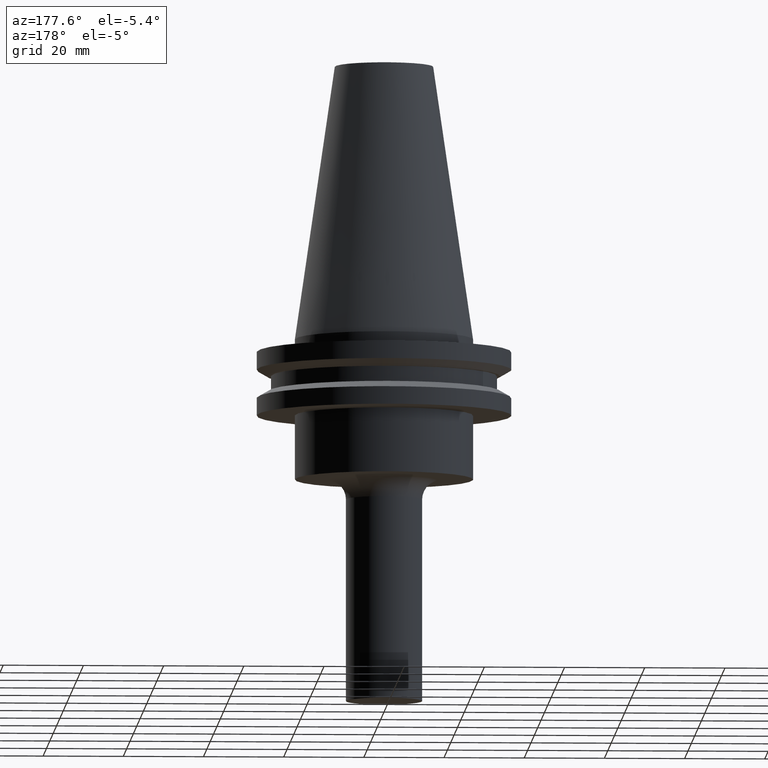
[diagram: clean part render]
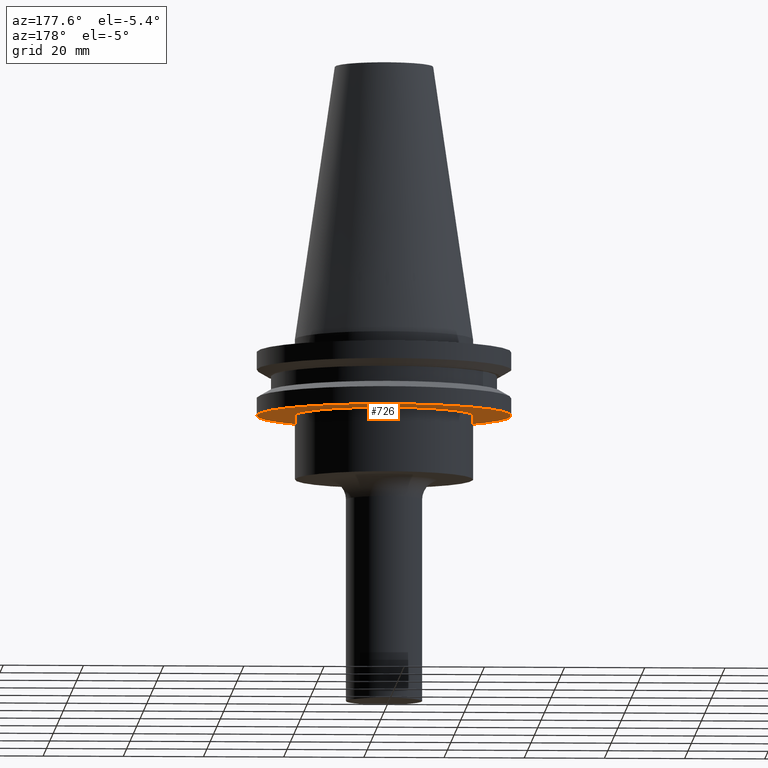
[diagram: same view with one face highlighted and labeled with its STEP entity id]
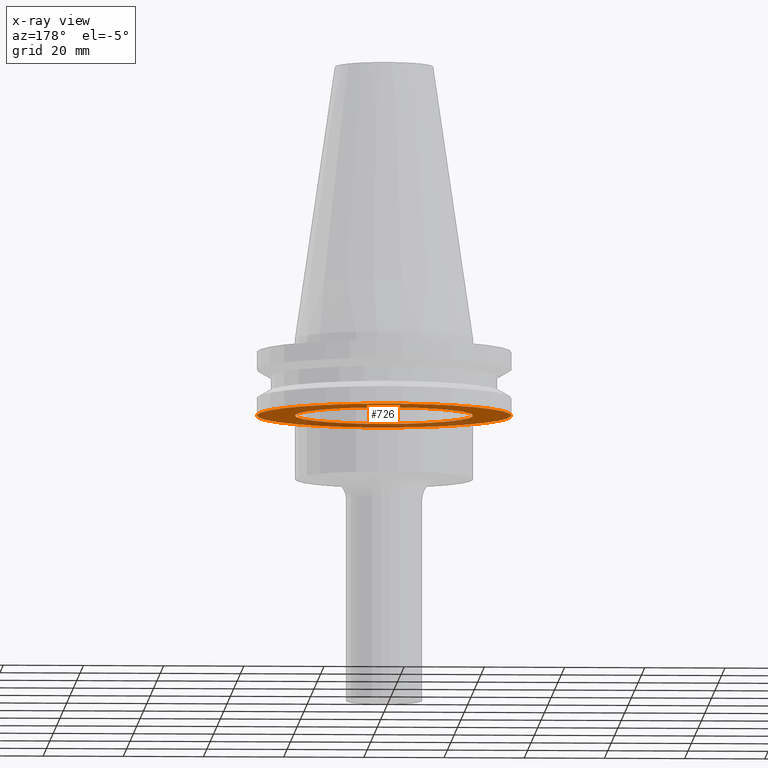
[diagram: x-ray of the same camera — body ghosted, the highlighted face saturated]
A machine part, auxiliary view. The second image highlights one B-rep face of the part: STEP entity #726.
The next image is the same camera in x-ray: the body ghosted, the highlighted face saturated — about 30% of this face is hidden behind the body in this view.
In plain terms, the highlighted planar face has unit normal (0, -0, 1).
Its self-contained STEP definition (entity closure, byte-faithful):
#24 = DIRECTION ( 'NONE',  ( -0.000000000000000000, -0.000000000000000000, 1.000000000000000000 ) ) ;
#89 = EDGE_CURVE ( 'NONE', #298, #422, #696, .T. ) ;
#92 = DIRECTION ( 'NONE',  ( -0.000000000000000000, -0.000000000000000000, 1.000000000000000000 ) ) ;
#107 = EDGE_CURVE ( 'NONE', #422, #298, #556, .T. ) ;
#122 = AXIS2_PLACEMENT_3D ( 'NONE', #327, #92, #734 ) ;
#145 = CIRCLE ( 'NONE', #684, 31.74999999999999289 ) ;
#182 = EDGE_CURVE ( 'NONE', #353, #630, #740, .T. ) ;
#208 = DIRECTION ( 'NONE',  ( 1.000000000000000000, 0.000000000000000000, 0.000000000000000000 ) ) ;
#212 = PLANE ( 'NONE',  #537 ) ;
#254 = CARTESIAN_POINT ( 'NONE',  ( -31.74999999999999289, 3.888253587292845687E-15, -19.04999999999999716 ) ) ;
#270 = CARTESIAN_POINT ( 'NONE',  ( 22.22500000000000142, 0.000000000000000000, -19.04999999999999716 ) ) ;
#294 = EDGE_CURVE ( 'NONE', #630, #353, #145, .T. ) ;
#298 = VERTEX_POINT ( 'NONE', #642 ) ;
#300 = AXIS2_PLACEMENT_3D ( 'NONE', #562, #384, #208 ) ;
#327 = CARTESIAN_POINT ( 'NONE',  ( 0.000000000000000000, 0.000000000000000000, -19.04999999999999716 ) ) ;
#351 = ORIENTED_EDGE ( 'NONE', *, *, #182, .F. ) ;
#353 = VERTEX_POINT ( 'NONE', #524 ) ;
#376 = EDGE_LOOP ( 'NONE', ( #585, #473 ) ) ;
#384 = DIRECTION ( 'NONE',  ( -0.000000000000000000, -0.000000000000000000, 1.000000000000000000 ) ) ;
#417 = DIRECTION ( 'NONE',  ( 1.000000000000000000, 0.000000000000000000, 0.000000000000000000 ) ) ;
#420 = ORIENTED_EDGE ( 'NONE', *, *, #294, .F. ) ;
#422 = VERTEX_POINT ( 'NONE', #270 ) ;
#466 = CARTESIAN_POINT ( 'NONE',  ( 0.000000000000000000, 0.000000000000000000, -19.04999999999999716 ) ) ;
#473 = ORIENTED_EDGE ( 'NONE', *, *, #89, .T. ) ;
#501 = FACE_BOUND ( 'NONE', #376, .T. ) ;
#524 = CARTESIAN_POINT ( 'NONE',  ( 31.74999999999999289, 0.000000000000000000, -19.04999999999999716 ) ) ;
#537 = AXIS2_PLACEMENT_3D ( 'NONE', #610, #694, #748 ) ;
#556 = CIRCLE ( 'NONE', #300, 22.22500000000000142 ) ;
#562 = CARTESIAN_POINT ( 'NONE',  ( 0.000000000000000000, 0.000000000000000000, -19.04999999999999716 ) ) ;
#572 = CARTESIAN_POINT ( 'NONE',  ( 0.000000000000000000, 0.000000000000000000, -19.04999999999999716 ) ) ;
#585 = ORIENTED_EDGE ( 'NONE', *, *, #107, .T. ) ;
#598 = EDGE_LOOP ( 'NONE', ( #351, #420 ) ) ;
#610 = CARTESIAN_POINT ( 'NONE',  ( 0.000000000000000000, 31.74999999999999289, -19.04999999999999716 ) ) ;
#630 = VERTEX_POINT ( 'NONE', #254 ) ;
#638 = DIRECTION ( 'NONE',  ( -0.000000000000000000, -0.000000000000000000, 1.000000000000000000 ) ) ;
#642 = CARTESIAN_POINT ( 'NONE',  ( -22.22500000000000142, 2.721777511104992849E-15, -19.04999999999999716 ) ) ;
#684 = AXIS2_PLACEMENT_3D ( 'NONE', #466, #638, #417 ) ;
#690 = DIRECTION ( 'NONE',  ( 1.000000000000000000, 0.000000000000000000, 0.000000000000000000 ) ) ;
#694 = DIRECTION ( 'NONE',  ( 0.000000000000000000, -0.000000000000000000, 1.000000000000000000 ) ) ;
#696 = CIRCLE ( 'NONE', #122, 22.22500000000000142 ) ;
#726 = ADVANCED_FACE ( 'NONE', ( #737, #501 ), #212, .F. ) ;
#734 = DIRECTION ( 'NONE',  ( 1.000000000000000000, 0.000000000000000000, 0.000000000000000000 ) ) ;
#737 = FACE_OUTER_BOUND ( 'NONE', #598, .T. ) ;
#740 = CIRCLE ( 'NONE', #747, 31.74999999999999289 ) ;
#747 = AXIS2_PLACEMENT_3D ( 'NONE', #572, #24, #690 ) ;
#748 = DIRECTION ( 'NONE',  ( 1.000000000000000000, 0.000000000000000000, 0.000000000000000000 ) ) ;